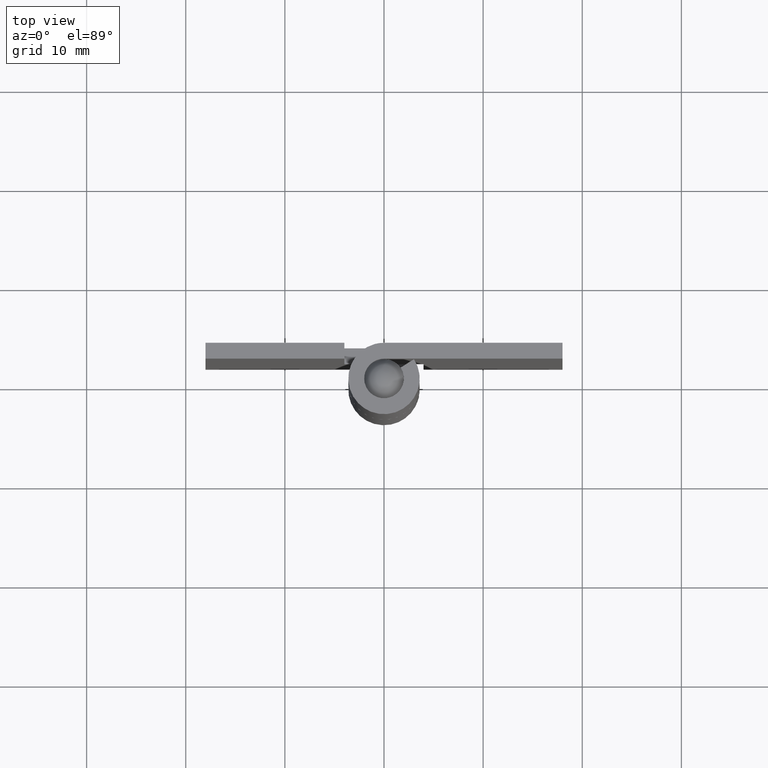
[diagram: clean part render]
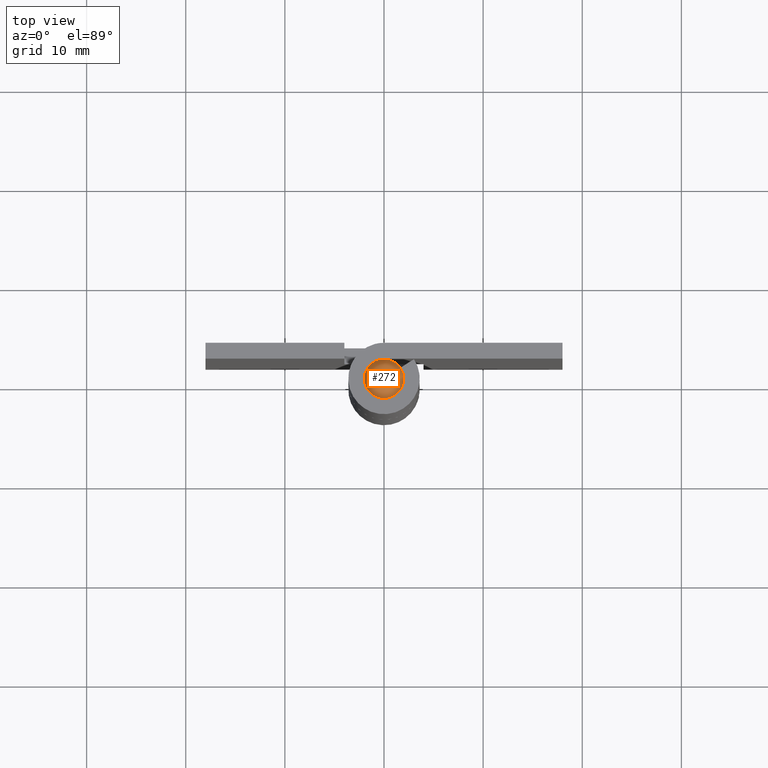
[diagram: same view with one face highlighted and labeled with its STEP entity id]
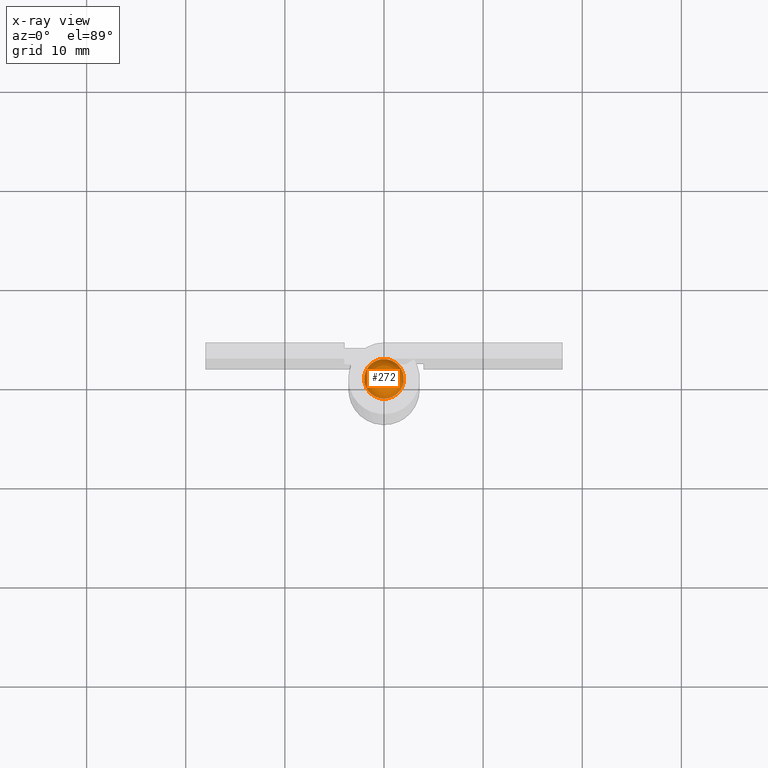
[diagram: x-ray of the same camera — body ghosted, the highlighted face saturated]
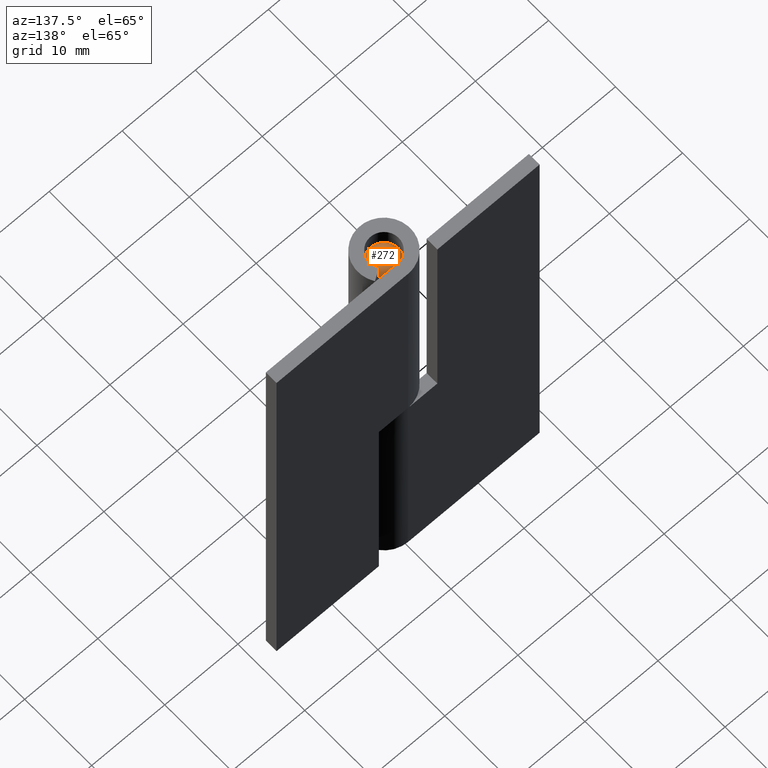
[diagram: same view with one face highlighted and labeled with its STEP entity id]
A machine part, top view. The second image highlights one B-rep face of the part: STEP entity #272.
The next image is the same camera in x-ray: the body ghosted, the highlighted face saturated — about 0% of this face is hidden behind the body in this view.
A second angle (auxiliary view) of the same face is appended — the face is thin or edge-on in the first view.
In plain terms, the highlighted face is a freeform B-spline surface patch.
Its self-contained STEP definition (entity closure, byte-faithful):
#85=CARTESIAN_POINT('',(-0.236068441853754,1.986018819748432,61.499998215275198));
#86=VERTEX_POINT('',#85);
#92=CARTESIAN_POINT('',(1.999999687211385,0.0,61.499998215275198));
#93=VERTEX_POINT('',#92);
#94=CARTESIAN_POINT('',(-0.236068441853754,1.986018819748432,61.499998215275198));
#95=CARTESIAN_POINT('',(-0.118448221011683,1.999999687211385,61.499998215275198));
#96=CARTESIAN_POINT('',(0.0,1.999999687211385,61.499998215275198));
#97=CARTESIAN_POINT('',(1.999999687211385,1.999999687211385,61.499998215275198));
#98=CARTESIAN_POINT('',(1.999999687211385,0.0,61.499998215275198));
#106=(BOUNDED_CURVE()B_SPLINE_CURVE(2,(#94,#95,#96,#97,#98),.UNSPECIFIED.,.F.,.U.)B_SPLINE_CURVE_WITH_KNOTS((3,2,3),(0.229562473476490,0.250000000000000,0.500000000000000),.UNSPECIFIED.)CURVE()GEOMETRIC_REPRESENTATION_ITEM()RATIONAL_B_SPLINE_CURVE((0.956026754111141,0.976055948287775,1.0,0.707106781186547,1.0))REPRESENTATION_ITEM(''));
#107=EDGE_CURVE('',#86,#93,#106,.T.);
#109=CARTESIAN_POINT('',(0.122097064824999,-1.996269362685140,61.499998215275198));
#110=VERTEX_POINT('',#109);
#111=CARTESIAN_POINT('',(1.999999687211385,0.0,61.499998215275198));
#112=CARTESIAN_POINT('',(1.999999687211386,-1.881411839424297,61.499998215275198));
#113=CARTESIAN_POINT('',(0.122097064824999,-1.996269362685140,61.499998215275198));
#121=(BOUNDED_CURVE()B_SPLINE_CURVE(2,(#111,#112,#113),.UNSPECIFIED.,.F.,.U.)B_SPLINE_CURVE_WITH_KNOTS((3,3),(0.500000000000000,0.739332962228700),.UNSPECIFIED.)CURVE()GEOMETRIC_REPRESENTATION_ITEM()RATIONAL_B_SPLINE_CURVE((1.0,0.719603993298711,0.976072041644765))REPRESENTATION_ITEM(''));
#122=EDGE_CURVE('',#93,#110,#121,.T.);
#196=CARTESIAN_POINT('',(-1.999999687211385,0.0,61.499998215275198));
#197=VERTEX_POINT('',#196);
#198=CARTESIAN_POINT('',(0.122097064824999,-1.996269362685139,61.499998215275198));
#199=CARTESIAN_POINT('',(0.061105517117588,-1.999999687211385,61.499998215275198));
#200=CARTESIAN_POINT('',(0.0,-1.999999687211385,61.499998215275198));
#201=CARTESIAN_POINT('',(-1.999999687211385,-1.999999687211385,61.499998215275198));
#202=CARTESIAN_POINT('',(-1.999999687211385,0.0,61.499998215275198));
#210=(BOUNDED_CURVE()B_SPLINE_CURVE(2,(#198,#199,#200,#201,#202),.UNSPECIFIED.,.F.,.U.)B_SPLINE_CURVE_WITH_KNOTS((3,2,3),(0.739332962228700,0.750000000000000,1.0),.UNSPECIFIED.)CURVE()GEOMETRIC_REPRESENTATION_ITEM()RATIONAL_B_SPLINE_CURVE((0.976072041644766,0.987502787887838,1.0,0.707106781186547,1.0))REPRESENTATION_ITEM(''));
#211=EDGE_CURVE('',#110,#197,#210,.T.);
#213=CARTESIAN_POINT('',(-1.999999687211385,0.0,61.499998215275198));
#214=CARTESIAN_POINT('',(-1.999999687211385,1.776348773677413,61.499998215275198));
#215=CARTESIAN_POINT('',(-0.236068441853754,1.986018819748431,61.499998215275191));
#223=(BOUNDED_CURVE()B_SPLINE_CURVE(2,(#213,#214,#215),.UNSPECIFIED.,.F.,.U.)B_SPLINE_CURVE_WITH_KNOTS((3,3),(0.0,0.229562473476490),.UNSPECIFIED.)CURVE()GEOMETRIC_REPRESENTATION_ITEM()RATIONAL_B_SPLINE_CURVE((1.0,0.731050832898773,0.956026754111141))REPRESENTATION_ITEM(''));
#224=EDGE_CURVE('',#197,#86,#223,.T.);
#242=CARTESIAN_POINT('',(-1.461900274785525,-1.461900274785524,60.659815701669132));
#243=CARTESIAN_POINT('',(-1.016368766600801,-2.032737533201604,61.373014109785842));
#244=CARTESIAN_POINT('',(1.016368766600802,-2.032737533201604,61.373014109785842));
#245=CARTESIAN_POINT('',(1.461900274785524,-1.461900274785524,60.659815701669132));
#246=CARTESIAN_POINT('',(-2.032737533201602,-1.016368766600802,61.373014109785899));
#247=CARTESIAN_POINT('',(-1.667480023164929,-1.667480023164936,62.999997999999898));
#248=CARTESIAN_POINT('',(1.667480023164938,-1.667480023164936,62.999997999999891));
#249=CARTESIAN_POINT('',(2.032737533201604,-1.016368766600802,61.373014109785842));
#250=CARTESIAN_POINT('',(-2.032737533201602,1.016368766600801,61.373014109785899));
#251=CARTESIAN_POINT('',(-1.667480023164929,1.667480023164932,62.999997999999913));
#252=CARTESIAN_POINT('',(1.667480023164938,1.667480023164932,62.999997999999898));
#253=CARTESIAN_POINT('',(2.032737533201604,1.016368766600801,61.373014109785842));
#254=CARTESIAN_POINT('',(-1.461900274785525,1.461900274785525,60.659815701669132));
#255=CARTESIAN_POINT('',(-1.016368766600801,2.032737533201602,61.373014109785899));
#256=CARTESIAN_POINT('',(1.016368766600802,2.032737533201602,61.373014109785842));
#257=CARTESIAN_POINT('',(1.461900274785524,1.461900274785525,60.659815701669132));
#265=(BOUNDED_SURFACE()B_SPLINE_SURFACE(2,2,((#242,#246,#250,#254),(#243,#247,#251,#255),(#244,#248,#252,#256),(#245,#249,#253,#257)),.UNSPECIFIED.,.F.,.F.,.U.)B_SPLINE_SURFACE_WITH_KNOTS((3,1,3),(3,1,3),(0.0,2.525886884444863,5.051773768889725),(0.0,2.525886884444871,5.051773768889741),.UNSPECIFIED.)GEOMETRIC_REPRESENTATION_ITEM()RATIONAL_B_SPLINE_SURFACE(((2.281250030422999,1.640625015211500,1.640625015211500,2.281250030422999),(1.640625015211500,1.0,1.0,1.640625015211500),(1.640625015211500,1.0,1.0,1.640625015211500),(2.281250030422999,1.640625015211500,1.640625015211500,2.281250030422999)))REPRESENTATION_ITEM('')SURFACE());
#266=ORIENTED_EDGE('',*,*,#211,.F.);
#267=ORIENTED_EDGE('',*,*,#122,.F.);
#268=ORIENTED_EDGE('',*,*,#107,.F.);
#269=ORIENTED_EDGE('',*,*,#224,.F.);
#270=EDGE_LOOP('',(#266,#267,#268,#269));
#271=FACE_OUTER_BOUND('',#270,.T.);
#272=ADVANCED_FACE('',(#271),#265,.T.);